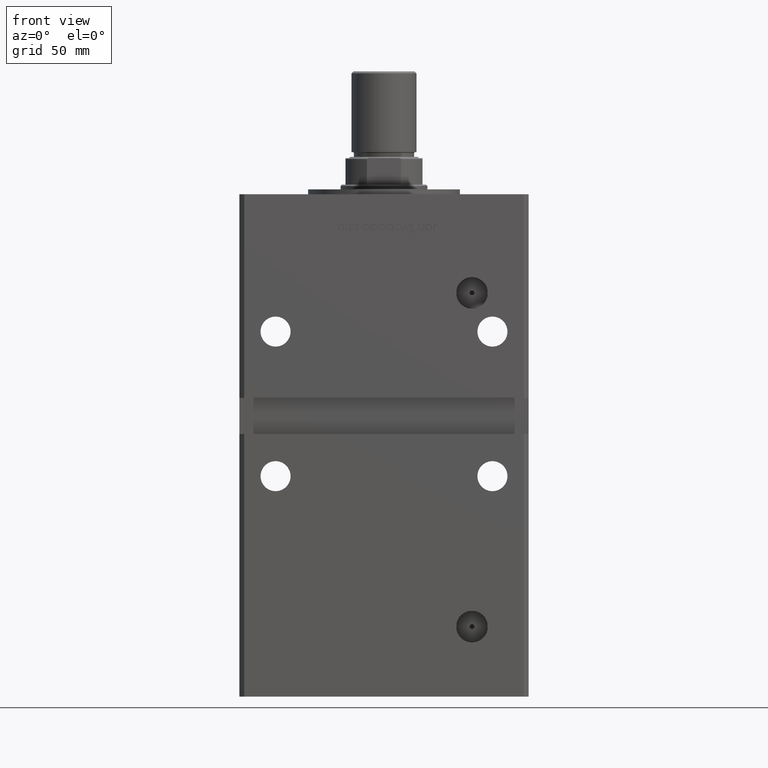
[diagram: clean part render]
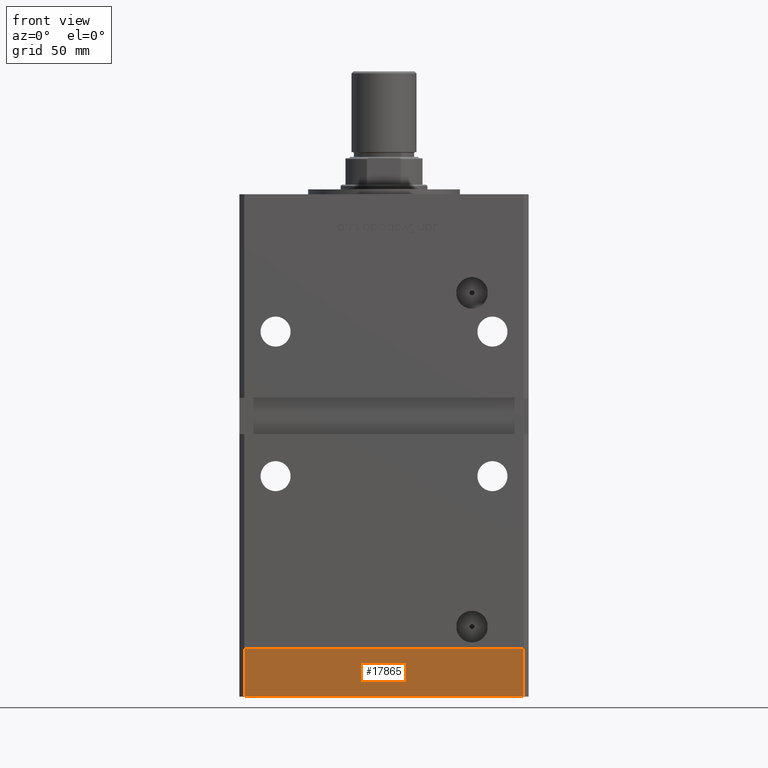
[diagram: same view with one face highlighted and labeled with its STEP entity id]
A machine part, front view. The second image highlights one B-rep face of the part: STEP entity #17865.
In plain terms, the highlighted planar face has unit normal (0, -1, -0).
Its self-contained STEP definition (entity closure, byte-faithful):
#1767 = PLANE ( 'NONE',  #16653 ) ;
#3133 = ORIENTED_EDGE ( 'NONE', *, *, #7430, .T. ) ;
#6451 = VECTOR ( 'NONE', #41894, 1000.000000000000000 ) ;
#7430 = EDGE_CURVE ( 'NONE', #15206, #9675, #34934, .T. ) ;
#7578 = ORIENTED_EDGE ( 'NONE', *, *, #28094, .T. ) ;
#7625 = VERTEX_POINT ( 'NONE', #37131 ) ;
#7975 = LINE ( 'NONE', #25000, #49616 ) ;
#9675 = VERTEX_POINT ( 'NONE', #37818 ) ;
#14794 = ORIENTED_EDGE ( 'NONE', *, *, #29915, .F. ) ;
#15206 = VERTEX_POINT ( 'NONE', #35186 ) ;
#16653 = AXIS2_PLACEMENT_3D ( 'NONE', #18022, #50188, #33952 ) ;
#17865 = ADVANCED_FACE ( 'NONE', ( #34216 ), #1767, .T. ) ;
#18022 = CARTESIAN_POINT ( 'NONE',  ( -57.99999999999997868, -51.00000000000001421, -20.00000000000000000 ) ) ;
#18893 = CARTESIAN_POINT ( 'NONE',  ( -57.99999999999997868, -51.00000000000001421, -20.00000000000000000 ) ) ;
#19377 = EDGE_LOOP ( 'NONE', ( #14794, #41317, #3133, #7578 ) ) ;
#25000 = CARTESIAN_POINT ( 'NONE',  ( 58.00000000000000000, -51.00000000000000711, -20.00000000000000000 ) ) ;
#28094 = EDGE_CURVE ( 'NONE', #9675, #7625, #7975, .T. ) ;
#29339 = VECTOR ( 'NONE', #35355, 1000.000000000000000 ) ;
#29734 = DIRECTION ( 'NONE',  ( 1.000000000000000000, 1.196361017915039486E-16, 0.000000000000000000 ) ) ;
#29915 = EDGE_CURVE ( 'NONE', #52632, #7625, #46752, .T. ) ;
#32459 = VECTOR ( 'NONE', #29734, 1000.000000000000000 ) ;
#33952 = DIRECTION ( 'NONE',  ( 1.000000000000000000, 1.196361017915039486E-16, 0.000000000000000000 ) ) ;
#34216 = FACE_OUTER_BOUND ( 'NONE', #19377, .T. ) ;
#34934 = LINE ( 'NONE', #51457, #6451 ) ;
#35186 = CARTESIAN_POINT ( 'NONE',  ( -57.99999999999997868, -51.00000000000001421, -20.00000000000000000 ) ) ;
#35355 = DIRECTION ( 'NONE',  ( 0.000000000000000000, 0.000000000000000000, 1.000000000000000000 ) ) ;
#37131 = CARTESIAN_POINT ( 'NONE',  ( 58.00000000000000000, -51.00000000000000711, 0.000000000000000000 ) ) ;
#37670 = DIRECTION ( 'NONE',  ( 0.000000000000000000, 0.000000000000000000, 1.000000000000000000 ) ) ;
#37818 = CARTESIAN_POINT ( 'NONE',  ( 58.00000000000000000, -51.00000000000000711, -20.00000000000000000 ) ) ;
#41317 = ORIENTED_EDGE ( 'NONE', *, *, #46814, .F. ) ;
#41894 = DIRECTION ( 'NONE',  ( 1.000000000000000000, 1.196361017915039486E-16, 0.000000000000000000 ) ) ;
#42426 = CARTESIAN_POINT ( 'NONE',  ( -57.99999999999997868, -51.00000000000001421, 0.000000000000000000 ) ) ;
#43486 = LINE ( 'NONE', #18893, #29339 ) ;
#46752 = LINE ( 'NONE', #42426, #32459 ) ;
#46814 = EDGE_CURVE ( 'NONE', #15206, #52632, #43486, .T. ) ;
#49616 = VECTOR ( 'NONE', #37670, 1000.000000000000000 ) ;
#50188 = DIRECTION ( 'NONE',  ( 1.196361017915039486E-16, -1.000000000000000000, 0.000000000000000000 ) ) ;
#51457 = CARTESIAN_POINT ( 'NONE',  ( -57.99999999999997868, -51.00000000000001421, -20.00000000000000000 ) ) ;
#52128 = CARTESIAN_POINT ( 'NONE',  ( -57.99999999999997868, -51.00000000000001421, 0.000000000000000000 ) ) ;
#52632 = VERTEX_POINT ( 'NONE', #52128 ) ;